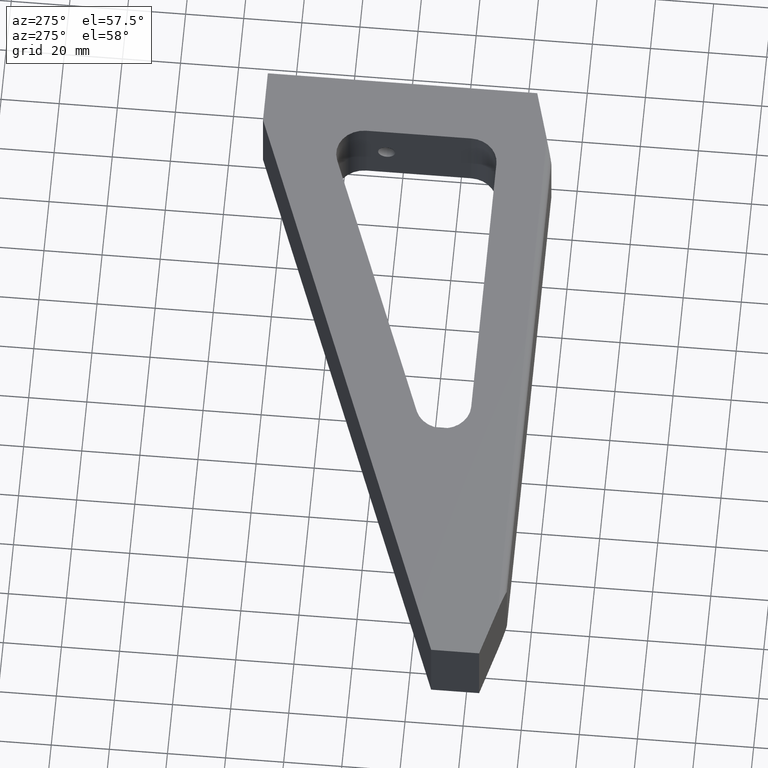
[diagram: clean part render]
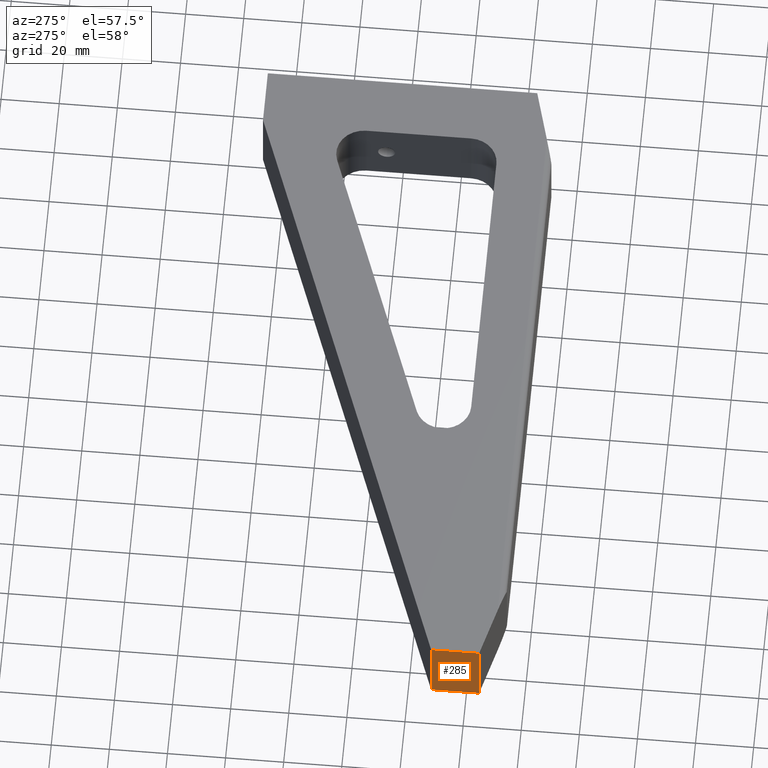
[diagram: same view with one face highlighted and labeled with its STEP entity id]
A machine part, auxiliary view. The second image highlights one B-rep face of the part: STEP entity #285.
In plain terms, the highlighted planar face has unit normal (1, 0, -0).
Its self-contained STEP definition (entity closure, byte-faithful):
#50 = CARTESIAN_POINT ( 'NONE',  ( -9.000000000000000000, -1.752499999999999900, 0.5000000000000000000 ) ) ;
#56 = ORIENTED_EDGE ( 'NONE', *, *, #480, .T. ) ;
#96 = DIRECTION ( 'NONE',  ( -0.0000000000000000000, 0.0000000000000000000, -1.000000000000000000 ) ) ;
#187 = CARTESIAN_POINT ( 'NONE',  ( -9.000000000000000000, -1.102500000000000000, 0.5000000000000000000 ) ) ;
#204 = DIRECTION ( 'NONE',  ( -0.0000000000000000000, -0.0000000000000000000, -1.000000000000000000 ) ) ;
#226 = EDGE_CURVE ( 'NONE', #347, #518, #774, .T. ) ;
#268 = CARTESIAN_POINT ( 'NONE',  ( -9.000000000000000000, -1.752499999999999900, 0.5000000000000000000 ) ) ;
#276 = DIRECTION ( 'NONE',  ( 0.0000000000000000000, -1.000000000000000000, 0.0000000000000000000 ) ) ;
#283 = ORIENTED_EDGE ( 'NONE', *, *, #226, .F. ) ;
#285 = ADVANCED_FACE ( 'NONE', ( #834 ), #414, .F. ) ;
#295 = CARTESIAN_POINT ( 'NONE',  ( -9.000000000000000000, -1.102500000000000000, -0.5000000000000000000 ) ) ;
#347 = VERTEX_POINT ( 'NONE', #50 ) ;
#389 = CARTESIAN_POINT ( 'NONE',  ( -9.000000000000000000, -1.102500000000000000, 0.5000000000000000000 ) ) ;
#401 = CARTESIAN_POINT ( 'NONE',  ( -9.000000000000000000, -1.752499999999999900, -0.5000000000000000000 ) ) ;
#409 = DIRECTION ( 'NONE',  ( -0.0000000000000000000, -0.0000000000000000000, -1.000000000000000000 ) ) ;
#414 = PLANE ( 'NONE',  #813 ) ;
#424 = EDGE_LOOP ( 'NONE', ( #56, #283, #516, #512 ) ) ;
#442 = CARTESIAN_POINT ( 'NONE',  ( -9.000000000000000000, -1.102500000000000000, 0.5000000000000000000 ) ) ;
#460 = VERTEX_POINT ( 'NONE', #187 ) ;
#480 = EDGE_CURVE ( 'NONE', #1020, #518, #775, .T. ) ;
#502 = EDGE_CURVE ( 'NONE', #460, #1020, #791, .T. ) ;
#512 = ORIENTED_EDGE ( 'NONE', *, *, #502, .T. ) ;
#516 = ORIENTED_EDGE ( 'NONE', *, *, #680, .F. ) ;
#518 = VERTEX_POINT ( 'NONE', #401 ) ;
#571 = LINE ( 'NONE', #820, #590 ) ;
#590 = VECTOR ( 'NONE', #800, 39.37007874015748100 ) ;
#677 = CARTESIAN_POINT ( 'NONE',  ( -9.000000000000000000, -1.102500000000000000, -0.5000000000000000000 ) ) ;
#680 = EDGE_CURVE ( 'NONE', #460, #347, #571, .T. ) ;
#713 = VECTOR ( 'NONE', #276, 39.37007874015748100 ) ;
#734 = DIRECTION ( 'NONE',  ( 1.000000000000000000, 0.0000000000000000000, -0.0000000000000000000 ) ) ;
#774 = LINE ( 'NONE', #268, #934 ) ;
#775 = LINE ( 'NONE', #295, #713 ) ;
#776 = VECTOR ( 'NONE', #409, 39.37007874015748100 ) ;
#791 = LINE ( 'NONE', #389, #776 ) ;
#800 = DIRECTION ( 'NONE',  ( 0.0000000000000000000, -1.000000000000000000, 0.0000000000000000000 ) ) ;
#813 = AXIS2_PLACEMENT_3D ( 'NONE', #442, #734, #96 ) ;
#820 = CARTESIAN_POINT ( 'NONE',  ( -9.000000000000000000, -1.102500000000000000, 0.5000000000000000000 ) ) ;
#834 = FACE_OUTER_BOUND ( 'NONE', #424, .T. ) ;
#934 = VECTOR ( 'NONE', #204, 39.37007874015748100 ) ;
#1020 = VERTEX_POINT ( 'NONE', #677 ) ;